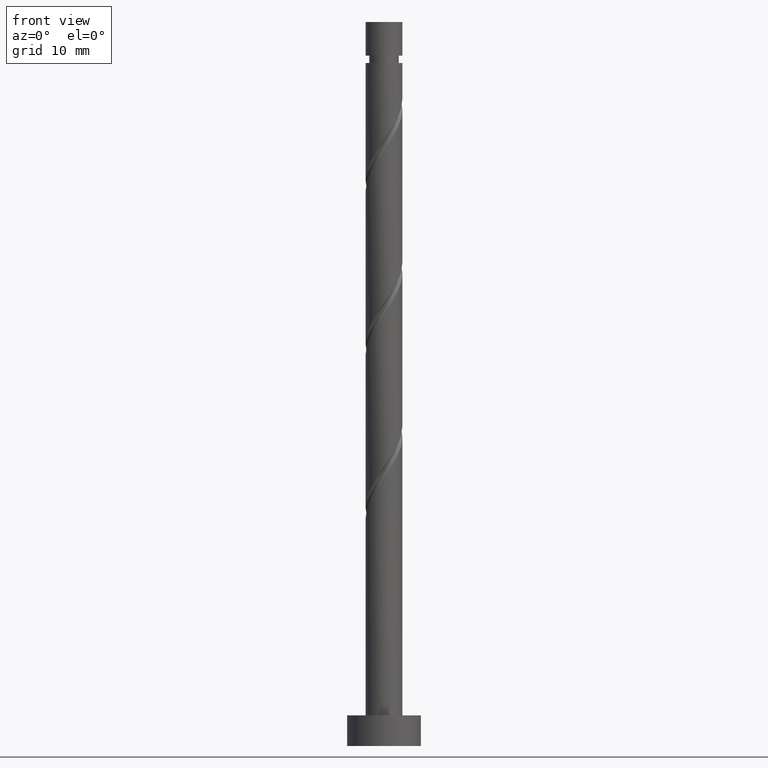
[diagram: clean part render]
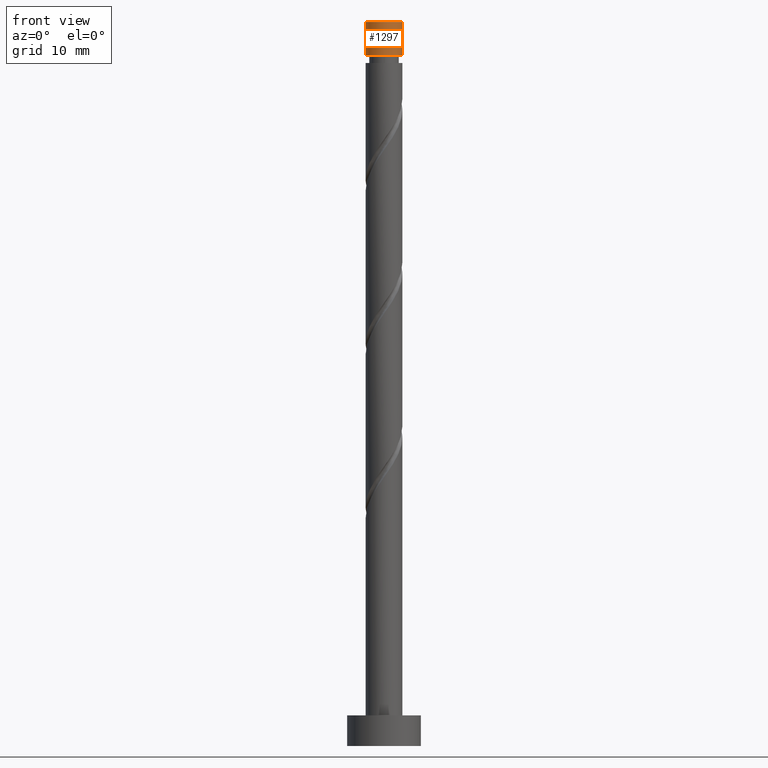
[diagram: same view with one face highlighted and labeled with its STEP entity id]
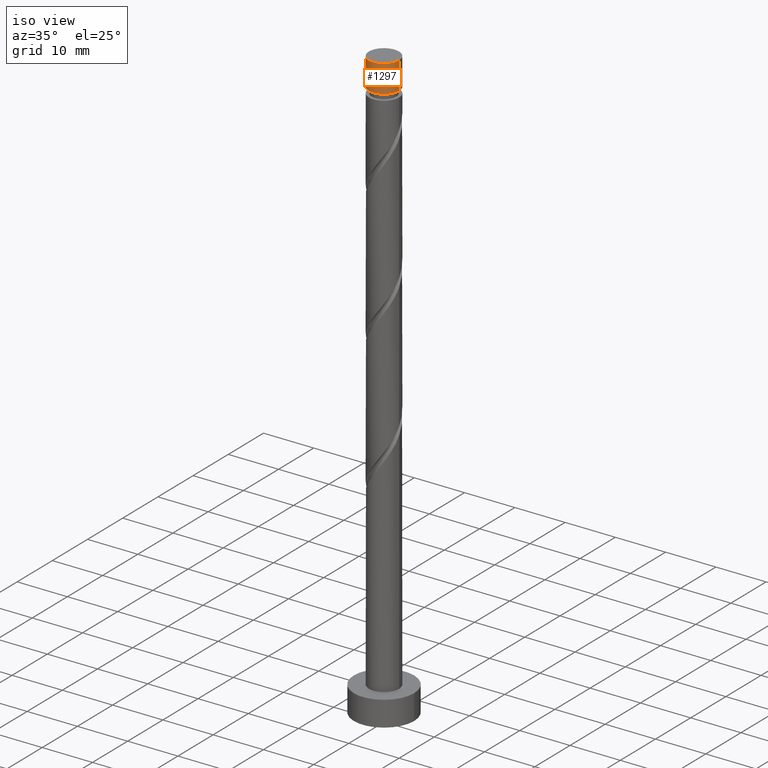
[diagram: same view with one face highlighted and labeled with its STEP entity id]
A machine part, front view. The second image highlights one B-rep face of the part: STEP entity #1297.
A second angle (iso view) of the same face is appended — the face is thin or edge-on in the first view.
In plain terms, the highlighted cylindrical surface (edge-blend (fillet) strip) has radius 3 mm, axis along (-0, -0, -1).
Its self-contained STEP definition (entity closure, byte-faithful):
#11 = DIRECTION ( 'NONE',  ( -1.000000000000000000, 0.000000000000000000, 0.000000000000000000 ) ) ;
#51 = EDGE_CURVE ( 'NONE', #1394, #1547, #1427, .T. ) ;
#92 = EDGE_LOOP ( 'NONE', ( #1626, #219, #801, #1110 ) ) ;
#116 = DIRECTION ( 'NONE',  ( -1.000000000000000000, 0.000000000000000000, 0.000000000000000000 ) ) ;
#161 = CIRCLE ( 'NONE', #1380, 2.999999999999999112 ) ;
#219 = ORIENTED_EDGE ( 'NONE', *, *, #1540, .F. ) ;
#241 = CARTESIAN_POINT ( 'NONE',  ( 2.999999999999999112, 3.673940397442058882E-16, 112.5213839651650716 ) ) ;
#326 = VERTEX_POINT ( 'NONE', #1057 ) ;
#369 = DIRECTION ( 'NONE',  ( -0.000000000000000000, -0.000000000000000000, -1.000000000000000000 ) ) ;
#400 = CIRCLE ( 'NONE', #1354, 3.000000000000000444 ) ;
#560 = EDGE_CURVE ( 'NONE', #597, #1547, #161, .T. ) ;
#597 = VERTEX_POINT ( 'NONE', #241 ) ;
#766 = CARTESIAN_POINT ( 'NONE',  ( 0.000000000000000000, 0.000000000000000000, 118.0000000000000142 ) ) ;
#770 = CARTESIAN_POINT ( 'NONE',  ( 3.000000000000000444, 3.673940397442060361E-16, 118.0000000000000142 ) ) ;
#795 = VECTOR ( 'NONE', #369, 1000.000000000000000 ) ;
#801 = ORIENTED_EDGE ( 'NONE', *, *, #51, .T. ) ;
#808 = EDGE_CURVE ( 'NONE', #326, #597, #1408, .T. ) ;
#835 = CARTESIAN_POINT ( 'NONE',  ( -3.000000000000000444, 0.000000000000000000, 118.0000000000000142 ) ) ;
#857 = CARTESIAN_POINT ( 'NONE',  ( -2.999999999999999112, 0.000000000000000000, 112.5213839651650716 ) ) ;
#906 = VECTOR ( 'NONE', #1279, 1000.000000000000000 ) ;
#997 = DIRECTION ( 'NONE',  ( 0.000000000000000000, 0.000000000000000000, 1.000000000000000000 ) ) ;
#1030 = CARTESIAN_POINT ( 'NONE',  ( 0.000000000000000000, 0.000000000000000000, 112.5213839651650716 ) ) ;
#1036 = DIRECTION ( 'NONE',  ( -0.000000000000000000, -0.000000000000000000, -1.000000000000000000 ) ) ;
#1057 = CARTESIAN_POINT ( 'NONE',  ( 3.000000000000000444, 3.673940397442060361E-16, 118.0000000000000142 ) ) ;
#1091 = AXIS2_PLACEMENT_3D ( 'NONE', #766, #1276, #116 ) ;
#1110 = ORIENTED_EDGE ( 'NONE', *, *, #560, .F. ) ;
#1124 = CARTESIAN_POINT ( 'NONE',  ( 0.000000000000000000, 0.000000000000000000, 118.0000000000000142 ) ) ;
#1261 = FACE_OUTER_BOUND ( 'NONE', #92, .T. ) ;
#1276 = DIRECTION ( 'NONE',  ( -0.000000000000000000, -0.000000000000000000, -1.000000000000000000 ) ) ;
#1279 = DIRECTION ( 'NONE',  ( -0.000000000000000000, -0.000000000000000000, -1.000000000000000000 ) ) ;
#1297 = ADVANCED_FACE ( 'NONE', ( #1261 ), #1403, .T. ) ;
#1299 = CARTESIAN_POINT ( 'NONE',  ( -3.000000000000000444, 0.000000000000000000, 118.0000000000000142 ) ) ;
#1354 = AXIS2_PLACEMENT_3D ( 'NONE', #1124, #997, #1510 ) ;
#1380 = AXIS2_PLACEMENT_3D ( 'NONE', #1030, #1036, #11 ) ;
#1394 = VERTEX_POINT ( 'NONE', #835 ) ;
#1403 = CYLINDRICAL_SURFACE ( 'NONE', #1091, 3.000000000000000444 ) ;
#1408 = LINE ( 'NONE', #770, #906 ) ;
#1427 = LINE ( 'NONE', #1299, #795 ) ;
#1510 = DIRECTION ( 'NONE',  ( 1.000000000000000000, 0.000000000000000000, 0.000000000000000000 ) ) ;
#1540 = EDGE_CURVE ( 'NONE', #1394, #326, #400, .T. ) ;
#1547 = VERTEX_POINT ( 'NONE', #857 ) ;
#1626 = ORIENTED_EDGE ( 'NONE', *, *, #808, .F. ) ;